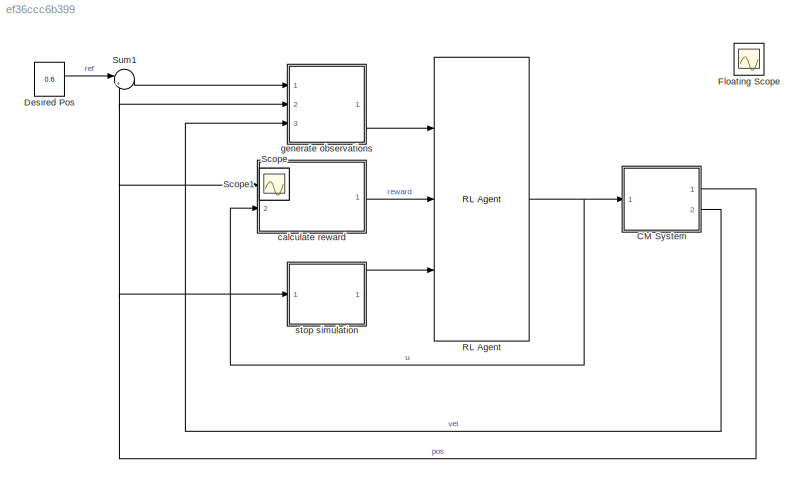
MODEL slx_ef36ccc6b399
KIND model
CONFIG AbsTol = auto
CONFIG EnableMultiTasking = on
CONFIG FixedStep = auto
CONFIG MaxStep = auto
CONFIG MinStep = auto
CONFIG RelTol = 1e-3
CONFIG SampleTimeConstraint = Unconstrained
CONFIG Solver = ode45
CONFIG SolverName = ode45
CONFIG StartTime = 0.0
CONFIG StopTime = 20
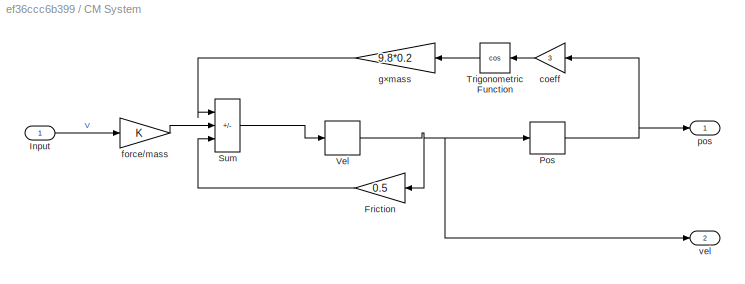
BLOCK [SubSystem] CM System
  Ports = [1, 2]
  RequestExecContextInheritance = off
BLOCK [Gain] CM System/Friction
  Gain = 0.5
  OutDataTypeStr = Inherit: Same as input
  ParamDataTypeStr = Inherit: Same as input
  SaturateOnIntegerOverflow = on
BLOCK [Inport] CM System/Input
BLOCK [DiscreteIntegrator] CM System/Pos
  ICPrevOutput = DiscIntNeverNeededParam
  ICPrevScaledInput = DiscIntNeverNeededParam
  InitialCondition = 0.6
  InitialConditionSetting = Auto
  LimitOutput = on
  LowerSaturationLimit = -1.2
  Ports = [1, 1]
  SampleTime = -1
  UpperSaturationLimit = 0.6
BLOCK [Sum] CM System/Sum
  IconShape = rectangular
  Inputs = |-+-
  Ports = [3, 1]
  SaturateOnIntegerOverflow = on
BLOCK [Trigonometry] CM System/Trigonometric Function
  Operator = cos
  Ports = [1, 1]
BLOCK [DiscreteIntegrator] CM System/Vel
  ICPrevOutput = DiscIntNeverNeededParam
  ICPrevScaledInput = DiscIntNeverNeededParam
  InitialCondition = 0.42
  InitialConditionSetting = Auto
  LimitOutput = on
  LowerSaturationLimit = -1.5
  Ports = [1, 1]
  SampleTime = -1
  UpperSaturationLimit = 1.5
BLOCK [Gain] CM System/coeff
  Gain = 3
  OutDataTypeStr = Inherit: Same as input
  ParamDataTypeStr = Inherit: Same as input
  SaturateOnIntegerOverflow = on
BLOCK [Gain] CM System/force//mass
  OutDataTypeStr = Inherit: Same as input
  ParamDataTypeStr = Inherit: Same as input
  SaturateOnIntegerOverflow = on
BLOCK [Gain] CM System/g×mass
  Gain = 9.8*0.2
  OutDataTypeStr = Inherit: Same as input
  ParamDataTypeStr = Inherit: Same as input
  SaturateOnIntegerOverflow = on
BLOCK [Outport] CM System/pos
  VectorParamsAs1DForOutWhenUnconnected = off
BLOCK [Outport] CM System/vel
  Port = 2
  VectorParamsAs1DForOutWhenUnconnected = off
BLOCK [Constant] Desired Pos
  Value = 0.6
BLOCK [Scope] Floating Scope
  Floating = on
  NumInputPorts = 1
  Ports = []
  ScopeSpecificationString = Simulink.scopes.TimeScopeBlockCfg('CurrentConfiguration', extmgr.ConfigurationSet(extmgr.Configuration('Core','General UI',true),extmgr.Configuration('Core','Source UI',true),extmgr.Configuration('Sources','WiredSimulink',true,'DataLoggingVariableName','ScopeData1'),extmgr.Configuration('Visuals','Time Domain',true,'SerializedDisplays',{struct('MinYLimReal','0.3975','MaxYLimReal','0.6225','YLabelR...<+1385ch>
BLOCK [Reference] RL Agent  REF=rllib/RL Agent
  Ports = [3, 1]
  SourceBlock = rllib/RL Agent
  SourceProductBaseCode = RL
  SourceType = RL Agent
BLOCK [Scope] Scope
  Floating = off
  IOType = viewer
  NumInputPorts = 1
  Ports = []
  ScopeSpecificationString = Simulink.scopes.TimeScopeBlockCfg('CurrentConfiguration', extmgr.ConfigurationSet(extmgr.Configuration('Core','General UI',true),extmgr.Configuration('Core','Source UI',true),extmgr.Configuration('Sources','WiredSimulink',true),extmgr.Configuration('Visuals','Time Domain',true,'SerializedDisplays',{struct('MinYLimReal','-1.4125','MaxYLimReal','0.7125','YLabelReal','','MinYLimMag','0.00000','MaxYLi...<+3381ch>
BLOCK [Scope] Scope1
  Floating = off
  IOType = viewer
  NumInputPorts = 1
  Ports = []
  ScopeSpecificationString = Simulink.scopes.TimeScopeBlockCfg('CurrentConfiguration', extmgr.ConfigurationSet(extmgr.Configuration('Core','General UI',true),extmgr.Configuration('Core','Source UI',true),extmgr.Configuration('Sources','WiredSimulink',true,'DataLoggingVariableName','ScopeData1'),extmgr.Configuration('Visuals','Time Domain',true,'SerializedDisplays',{struct('MinYLimReal','-0.83429','MaxYLimReal','0.74144','YLab...<+1467ch>
BLOCK [Sum] Sum1
  Inputs = |+-
  Ports = [2, 1]
  SaturateOnIntegerOverflow = on
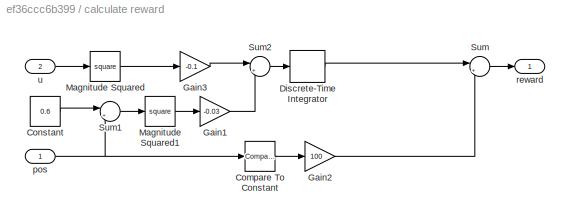
BLOCK [SubSystem] calculate reward
  Ports = [2, 1]
  RequestExecContextInheritance = off
BLOCK [Reference] calculate reward/Compare To Constant  REF=simulink/Logic and Bit
Operations/Compare
To Constant
  Ports = [1, 1]
  SourceBlock = simulink/Logic and Bit\nOperations/Compare\nTo Constant
  SourceProductBaseCode = SL
  SourceType = Compare To Constant
BLOCK [Constant] calculate reward/Constant
  Value = 0.6
BLOCK [DiscreteIntegrator] calculate reward/Discrete-Time Integrator
  ICPrevOutput = DiscIntNeverNeededParam
  ICPrevScaledInput = DiscIntNeverNeededParam
  InitialConditionSetting = Auto
  Ports = [1, 1]
  SampleTime = -1
BLOCK [Gain] calculate reward/Gain1
  Gain = -0.03
BLOCK [Gain] calculate reward/Gain2
  Gain = 100
BLOCK [Gain] calculate reward/Gain3
  Gain = -0.1
BLOCK [Math] calculate reward/Magnitude Squared
  Operator = square
  OutputSignalType = real
  Ports = [1, 1]
  SignedPower = on
BLOCK [Math] calculate reward/Magnitude Squared1
  Operator = square
  OutputSignalType = real
  Ports = [1, 1]
  SignedPower = on
BLOCK [Sum] calculate reward/Sum
  Inputs = |++
  OutDataTypeStr = double
  Ports = [2, 1]
BLOCK [Sum] calculate reward/Sum1
  Inputs = |+-
  OutDataTypeStr = double
  Ports = [2, 1]
BLOCK [Sum] calculate reward/Sum2
  Inputs = |++
  OutDataTypeStr = double
  Ports = [2, 1]
BLOCK [Inport] calculate reward/pos
BLOCK [Outport] calculate reward/reward
  VectorParamsAs1DForOutWhenUnconnected = off
BLOCK [Inport] calculate reward/u
  Port = 2
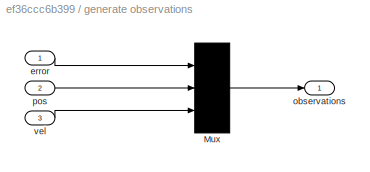
BLOCK [SubSystem] generate observations
  Ports = [3, 1]
  RequestExecContextInheritance = off
BLOCK [Mux] generate observations/Mux
  DisplayOption = bar
  Inputs = 3
  Ports = [3, 1]
BLOCK [Inport] generate observations/error
BLOCK [Outport] generate observations/observations
  VectorParamsAs1DForOutWhenUnconnected = off
BLOCK [Inport] generate observations/pos
  Port = 2
BLOCK [Inport] generate observations/vel
  Port = 3
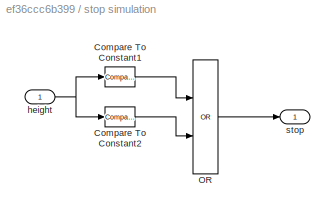
BLOCK [SubSystem] stop simulation
  Ports = [1, 1]
  RequestExecContextInheritance = off
BLOCK [Reference] stop simulation/Compare To Constant1  REF=simulink/Logic and Bit
Operations/Compare
To Constant
  Ports = [1, 1]
  SourceBlock = simulink/Logic and Bit\nOperations/Compare\nTo Constant
  SourceProductBaseCode = SL
  SourceType = Compare To Constant
BLOCK [Reference] stop simulation/Compare To Constant2  REF=simulink/Logic and Bit
Operations/Compare
To Constant
  Ports = [1, 1]
  SourceBlock = simulink/Logic and Bit\nOperations/Compare\nTo Constant
  SourceProductBaseCode = SL
  SourceType = Compare To Constant
BLOCK [Logic] stop simulation/OR
  AllPortsSameDT = off
  IconShape = distinctive
  Operator = OR
  OutDataTypeStr = boolean
  Ports = [2, 1]
BLOCK [Inport] stop simulation/height
BLOCK [Outport] stop simulation/stop
  VectorParamsAs1DForOutWhenUnconnected = off
LINE CM System/Friction:1 -> CM System/Sum:3
LINE CM System/Input:1 -> CM System/force//mass:1
NET CM System/Pos:1 -> CM System/coeff:1, CM System/pos:1
LINE CM System/Sum:1 -> CM System/Vel:1
LINE CM System/Trigonometric Function:1 -> CM System/g×mass:1
NET CM System/Vel:1 -> CM System/Friction:1, CM System/Pos:1, CM System/vel:1
LINE CM System/coeff:1 -> CM System/Trigonometric Function:1
LINE CM System/force//mass:1 -> CM System/Sum:2
LINE CM System/g×mass:1 -> CM System/Sum:1
NET CM System:1 -> Sum1:2, calculate reward:1, generate observations:2, stop simulation:1
LINE CM System:2 -> generate observations:3
LINE Desired Pos:1 -> Sum1:1
NET RL Agent:1 -> CM System:1, calculate reward:2
LINE Sum1:1 -> generate observations:1
LINE calculate reward/Compare To Constant:1 -> calculate reward/Gain2:1
LINE calculate reward/Constant:1 -> calculate reward/Sum1:1
LINE calculate reward/Discrete-Time Integrator:1 -> calculate reward/Sum:1
LINE calculate reward/Gain1:1 -> calculate reward/Sum2:2
LINE calculate reward/Gain2:1 -> calculate reward/Sum:2
LINE calculate reward/Gain3:1 -> calculate reward/Sum2:1
LINE calculate reward/Magnitude Squared1:1 -> calculate reward/Gain1:1
LINE calculate reward/Magnitude Squared:1 -> calculate reward/Gain3:1
LINE calculate reward/Sum1:1 -> calculate reward/Magnitude Squared1:1
LINE calculate reward/Sum2:1 -> calculate reward/Discrete-Time Integrator:1
LINE calculate reward/Sum:1 -> calculate reward/reward:1
NET calculate reward/pos:1 -> calculate reward/Compare To Constant:1, calculate reward/Sum1:2
LINE calculate reward/u:1 -> calculate reward/Magnitude Squared:1
LINE calculate reward:1 -> RL Agent:2
LINE generate observations/Mux:1 -> generate observations/observations:1
LINE generate observations/error:1 -> generate observations/Mux:1
LINE generate observations/pos:1 -> generate observations/Mux:2
LINE generate observations/vel:1 -> generate observations/Mux:3
LINE generate observations:1 -> RL Agent:1
LINE stop simulation/Compare To Constant1:1 -> stop simulation/OR:1
LINE stop simulation/Compare To Constant2:1 -> stop simulation/OR:2
LINE stop simulation/OR:1 -> stop simulation/stop:1
NET stop simulation/height:1 -> stop simulation/Compare To Constant1:1, stop simulation/Compare To Constant2:1
LINE stop simulation:1 -> RL Agent:3
note: NET lines group one-source signal fan-out (src -> all destinations, sorted); 1:1 wires keep LINE
